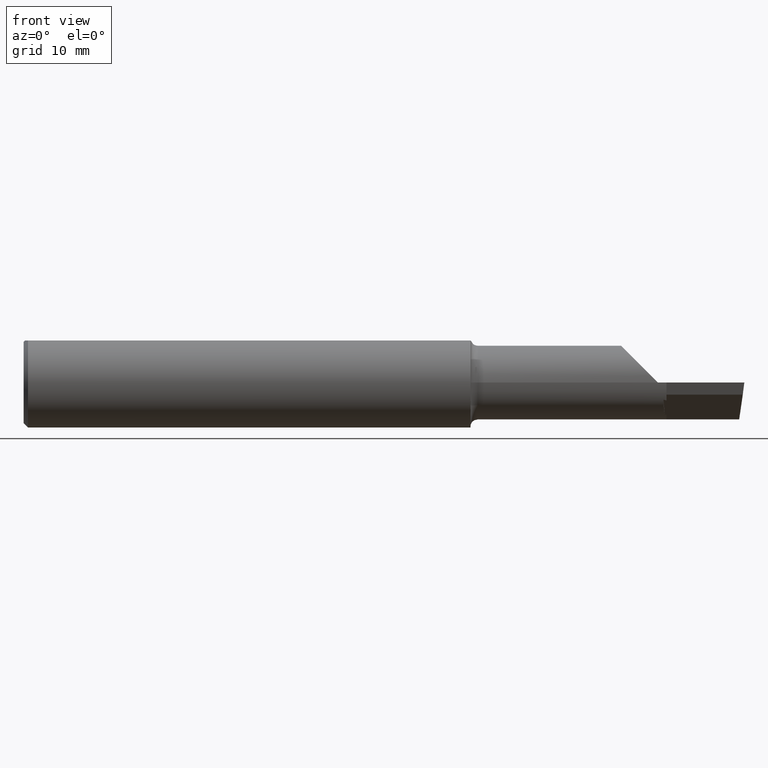
[diagram: clean part render]
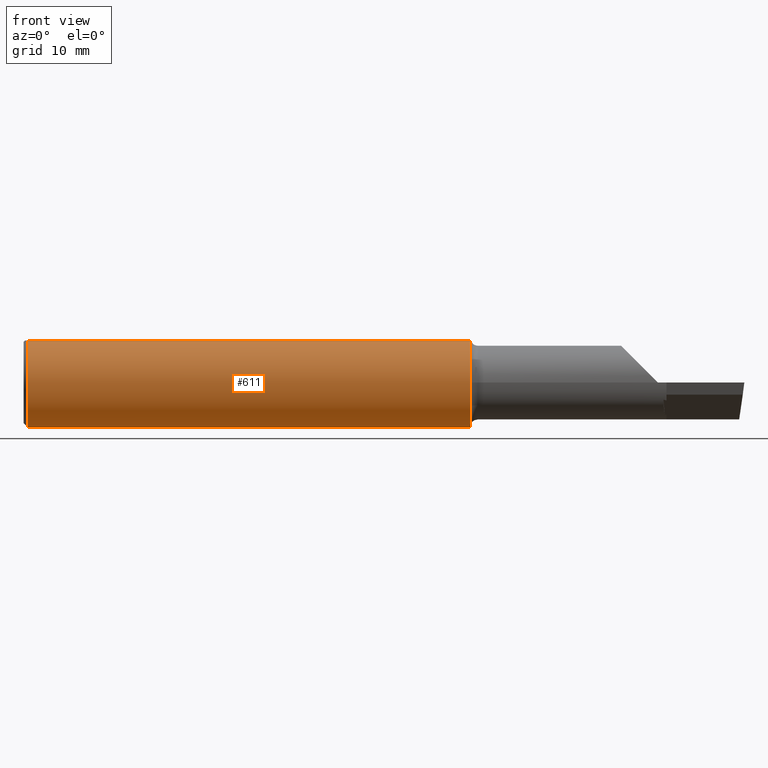
[diagram: same view with one face highlighted and labeled with its STEP entity id]
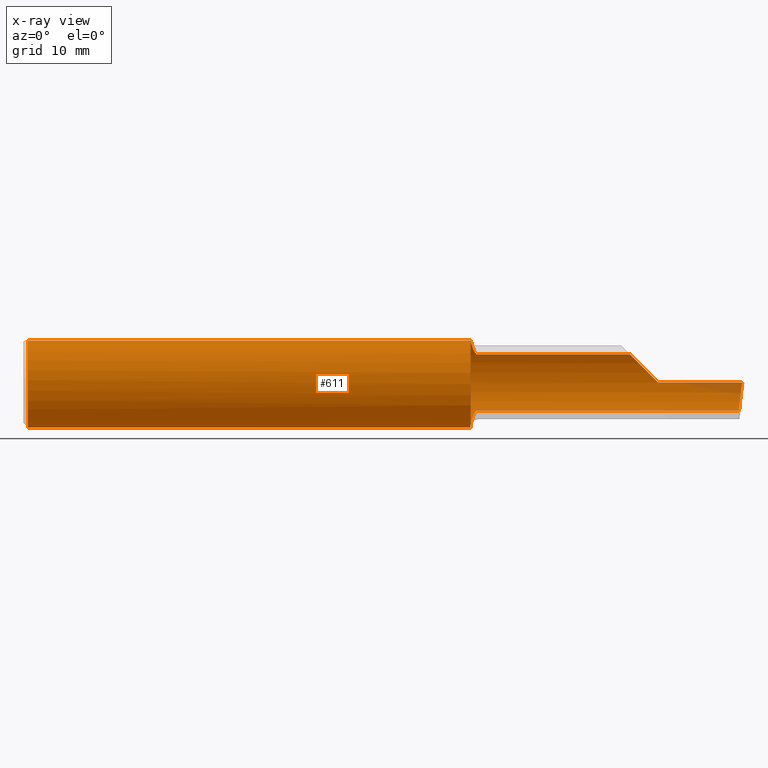
[diagram: x-ray of the same camera — body ghosted, the highlighted face saturated]
A machine part, front view. The second image highlights one B-rep face of the part: STEP entity #611.
The next image is the same camera in x-ray: the body ghosted, the highlighted face saturated — about 1% of this face is hidden behind the body in this view.
In plain terms, the highlighted cylindrical surface (partial cylindrical patch) has radius 3.9649 mm, axis along (-1, -0, -0).
Its self-contained STEP definition (entity closure, byte-faithful):
#1 = B_SPLINE_CURVE_WITH_KNOTS ( 'NONE', 3,
 ( #317, #483, #180, #320, #547, #287, #595, #674, #315, #540, #51, #491 ),
 .UNSPECIFIED., .F., .F.,
 ( 4, 2, 2, 2, 2, 4 ),
 ( 5.609278044431627235E-07, 0.001139286486424878012, 0.001708649265735095405, 0.001993330655390204102, 0.002135671350217758450, 0.002278012045045312798 ),
 .UNSPECIFIED. ) ;
#4 = CARTESIAN_POINT ( 'NONE',  ( 1.561718925422505011, 0.1096997042182709381, -0.1111484413982585656 ) ) ;
#9 = LINE ( 'NONE', #604, #90 ) ;
#18 = CIRCLE ( 'NONE', #415, 0.1560999999999999888 ) ;
#25 = VERTEX_POINT ( 'NONE', #586 ) ;
#33 = EDGE_CURVE ( 'NONE', #233, #289, #423, .T. ) ;
#40 = VERTEX_POINT ( 'NONE', #656 ) ;
#41 = EDGE_CURVE ( 'NONE', #650, #40, #9, .T. ) ;
#45 = DIRECTION ( 'NONE',  ( 0.000000000000000000, -1.000000000000000000, 0.000000000000000000 ) ) ;
#51 = CARTESIAN_POINT ( 'NONE',  ( 1.573073469876037578, 0.1221769230783503885, 0.09715971113124462211 ) ) ;
#66 = VECTOR ( 'NONE', #453, 39.37007874015748143 ) ;
#71 = ORIENTED_EDGE ( 'NONE', *, *, #41, .T. ) ;
#75 = EDGE_CURVE ( 'NONE', #477, #82, #495, .T. ) ;
#82 = VERTEX_POINT ( 'NONE', #110 ) ;
#87 = ORIENTED_EDGE ( 'NONE', *, *, #299, .T. ) ;
#90 = VECTOR ( 'NONE', #107, 39.37007874015748143 ) ;
#96 = DIRECTION ( 'NONE',  ( 0.000000000000000000, 0.000000000000000000, 1.000000000000000000 ) ) ;
#103 = CARTESIAN_POINT ( 'NONE',  ( 1.569807963827557939, 0.1204260765459410076, -0.09932603807424206233 ) ) ;
#107 = DIRECTION ( 'NONE',  ( 1.000000000000000000, -6.829619984160658046E-18, 0.000000000000000000 ) ) ;
#108 = CARTESIAN_POINT ( 'NONE',  ( 1.573773678789314845, 0.1221769230769225723, -0.09715971113303979723 ) ) ;
#110 = CARTESIAN_POINT ( 'NONE',  ( 1.550000000000000044, -0.05497272050753900657, 0.1461000000000000076 ) ) ;
#111 = EDGE_CURVE ( 'NONE', #40, #123, #235, .T. ) ;
#115 = CARTESIAN_POINT ( 'NONE',  ( 1.552778396491915069, 0.07658129683222567041, -0.1363479870192731702 ) ) ;
#120 = ORIENTED_EDGE ( 'NONE', *, *, #353, .T. ) ;
#123 = VERTEX_POINT ( 'NONE', #363 ) ;
#124 = EDGE_CURVE ( 'NONE', #443, #650, #1, .T. ) ;
#128 = CARTESIAN_POINT ( 'NONE',  ( 0.000000000000000000, 0.05497272050753903433, 0.1460999999999999521 ) ) ;
#134 = VECTOR ( 'NONE', #492, 39.37007874015748143 ) ;
#163 = CARTESIAN_POINT ( 'NONE',  ( 1.570642477297819584, 0.1209866175416251244, -0.09864046781463563229 ) ) ;
#168 = CARTESIAN_POINT ( 'NONE',  ( 3.121792066109142165E-32, 0.1560999999999999333, 3.155924005931204823E-16 ) ) ;
#178 = CARTESIAN_POINT ( 'NONE',  ( 1.902500000000000080, 0.1221769230769229331, -0.09715971113303932538 ) ) ;
#180 = CARTESIAN_POINT ( 'NONE',  ( 1.553337430773764405, 0.08212431379002413379, 0.1335735365034965427 ) ) ;
#184 = VERTEX_POINT ( 'NONE', #678 ) ;
#188 = AXIS2_PLACEMENT_3D ( 'NONE', #266, #537, #496 ) ;
#192 =( BOUNDED_CURVE ( )  B_SPLINE_CURVE ( 3, ( #392, #193, #232, #288 ),
 .UNSPECIFIED., .F., .T. ) 
 B_SPLINE_CURVE_WITH_KNOTS ( ( 4, 4 ),
 ( 4.934903206476692006, 5.606733633295030828 ),
 .UNSPECIFIED. ) 
 CURVE ( )  GEOMETRIC_REPRESENTATION_ITEM ( )  RATIONAL_B_SPLINE_CURVE ( ( 1.000000000000000000, 0.9627393467969929119, 0.9627393467969929119, 1.000000000000000000 ) ) 
 REPRESENTATION_ITEM ( '' )  );
#193 = CARTESIAN_POINT ( 'NONE',  ( 2.488065891762460069, 0.1561000000000000443, -0.03563149886036989789 ) ) ;
#206 = FACE_OUTER_BOUND ( 'NONE', #578, .T. ) ;
#215 = CARTESIAN_POINT ( 'NONE',  ( 0.01499999999999999424, 0.05497272050753903433, 0.1460999999999999521 ) ) ;
#218 = VECTOR ( 'NONE', #314, 39.37007874015748143 ) ;
#220 = CARTESIAN_POINT ( 'NONE',  ( 1.555770389155364919, 0.09238103948165142520, -0.1261792856732153745 ) ) ;
#222 = CARTESIAN_POINT ( 'NONE',  ( 2.130728481662469420, 0.1443546689866655186, 0.06927151833752984156 ) ) ;
#232 = CARTESIAN_POINT ( 'NONE',  ( 2.484397555013683423, 0.1443546689866653243, -0.06927151833753060484 ) ) ;
#233 = VERTEX_POINT ( 'NONE', #215 ) ;
#235 =( BOUNDED_CURVE ( )  B_SPLINE_CURVE ( 3, ( #368, #222, #441, #435 ),
 .UNSPECIFIED., .F., .F. ) 
 B_SPLINE_CURVE_WITH_KNOTS ( ( 4, 4 ),
 ( 0.8989658999765673952, 1.570796326794896336 ),
 .UNSPECIFIED. ) 
 CURVE ( )  GEOMETRIC_REPRESENTATION_ITEM ( )  RATIONAL_B_SPLINE_CURVE ( ( 1.000000000000000000, 0.9627393467969940222, 0.9627393467969940222, 1.000000000000000000 ) ) 
 REPRESENTATION_ITEM ( '' )  );
#245 = CARTESIAN_POINT ( 'NONE',  ( 1.574999999999999956, 0.1221769230769225167, -0.09715971113303972784 ) ) ;
#256 = ORIENTED_EDGE ( 'NONE', *, *, #124, .T. ) ;
#266 = CARTESIAN_POINT ( 'NONE',  ( 0.01499999999999999424, 0.000000000000000000, 0.000000000000000000 ) ) ;
#267 = LINE ( 'NONE', #168, #134 ) ;
#268 = CYLINDRICAL_SURFACE ( 'NONE', #312, 0.1560999999999999888 ) ;
#275 = EDGE_CURVE ( 'NONE', #123, #25, #267, .T. ) ;
#280 = CARTESIAN_POINT ( 'NONE',  ( 1.567557852537987184, 0.1186103045499234954, -0.1015006042428818478 ) ) ;
#287 = CARTESIAN_POINT ( 'NONE',  ( 1.563476732597053109, 0.1130158469709905134, 0.1077376761497233632 ) ) ;
#288 = CARTESIAN_POINT ( 'NONE',  ( 2.481689713451043833, 0.1221769230769229331, -0.09715971113303932538 ) ) ;
#289 = VERTEX_POINT ( 'NONE', #382 ) ;
#299 = EDGE_CURVE ( 'NONE', #410, #477, #573, .T. ) ;
#302 = ORIENTED_EDGE ( 'NONE', *, *, #275, .T. ) ;
#312 = AXIS2_PLACEMENT_3D ( 'NONE', #424, #644, #482 ) ;
#314 = DIRECTION ( 'NONE',  ( -1.000000000000000000, -0.000000000000000000, -0.000000000000000000 ) ) ;
#315 = CARTESIAN_POINT ( 'NONE',  ( 1.568763041475362385, 0.1196999967355485001, 0.1002047663032609726 ) ) ;
#316 = CARTESIAN_POINT ( 'NONE',  ( 1.566392177358948201, 0.1172252637552312765, -0.1031022108064125337 ) ) ;
#317 = CARTESIAN_POINT ( 'NONE',  ( 1.550713348720345941, 0.05497272050753925637, 0.1460999999999999521 ) ) ;
#319 = DIRECTION ( 'NONE',  ( -1.000000000000000000, 6.829619984160658046E-18, -0.000000000000000000 ) ) ;
#320 = CARTESIAN_POINT ( 'NONE',  ( 1.557875668882801934, 0.09985555054163962330, 0.1202116869044328185 ) ) ;
#353 = EDGE_CURVE ( 'NONE', #233, #443, #409, .T. ) ;
#357 = VECTOR ( 'NONE', #319, 39.37007874015748143 ) ;
#363 = CARTESIAN_POINT ( 'NONE',  ( 2.200000000000000178, 0.1560999999999997667, 9.797174393178826150E-17 ) ) ;
#367 = DIRECTION ( 'NONE',  ( -1.000000000000000000, -0.000000000000000000, -0.000000000000000000 ) ) ;
#368 = CARTESIAN_POINT ( 'NONE',  ( 2.102840288866960616, 0.1221769230769238490, 0.09715971113303838169 ) ) ;
#374 = LINE ( 'NONE', #697, #218 ) ;
#376 = CARTESIAN_POINT ( 'NONE',  ( 1.550000000000000044, 0.04153761541478954988, -0.1507758181214158000 ) ) ;
#382 = CARTESIAN_POINT ( 'NONE',  ( 0.01499999999999999424, 0.000000000000000000, -0.1560999999999999888 ) ) ;
#392 = CARTESIAN_POINT ( 'NONE',  ( 2.492284669827090404, 0.1560999999999998500, 6.904452464043948710E-17 ) ) ;
#398 = DIRECTION ( 'NONE',  ( -1.000000000000000000, 6.829619984160658046E-18, -0.000000000000000000 ) ) ;
#409 = LINE ( 'NONE', #128, #66 ) ;
#410 = VERTEX_POINT ( 'NONE', #245 ) ;
#415 = AXIS2_PLACEMENT_3D ( 'NONE', #587, #367, #96 ) ;
#423 = CIRCLE ( 'NONE', #188, 0.1560999999999999888 ) ;
#424 = CARTESIAN_POINT ( 'NONE',  ( 0.000000000000000000, 0.000000000000000000, 0.000000000000000000 ) ) ;
#435 = CARTESIAN_POINT ( 'NONE',  ( 2.200000000000000178, 0.1560999999999997667, 9.797174393178826150E-17 ) ) ;
#438 = CARTESIAN_POINT ( 'NONE',  ( 1.551725101710129007, 0.06813315891665765178, -0.1407628789512506418 ) ) ;
#441 = CARTESIAN_POINT ( 'NONE',  ( 2.164368501139629863, 0.1560999999999999888, 0.03563149886036958564 ) ) ;
#443 = VERTEX_POINT ( 'NONE', #685 ) ;
#444 = LINE ( 'NONE', #178, #357 ) ;
#446 = CARTESIAN_POINT ( 'NONE',  ( 1.550339637342208254, 0.05067448177557431349, -0.1479473295851734538 ) ) ;
#453 = DIRECTION ( 'NONE',  ( 1.000000000000000000, 0.000000000000000000, 0.000000000000000000 ) ) ;
#475 = EDGE_CURVE ( 'NONE', #25, #698, #192, .T. ) ;
#476 = CARTESIAN_POINT ( 'NONE',  ( 1.574999999999999956, 0.1221769230769225584, 0.09715971113303970008 ) ) ;
#477 = VERTEX_POINT ( 'NONE', #554 ) ;
#482 = DIRECTION ( 'NONE',  ( 0.000000000000000000, 0.000000000000000000, 1.000000000000000000 ) ) ;
#483 = CARTESIAN_POINT ( 'NONE',  ( 1.551630938536527893, 0.06913608029031600988, 0.1407707842656650832 ) ) ;
#491 = CARTESIAN_POINT ( 'NONE',  ( 1.574999999999999956, 0.1221769230769225584, 0.09715971113303970008 ) ) ;
#492 = DIRECTION ( 'NONE',  ( 1.000000000000000000, 0.000000000000000000, 0.000000000000000000 ) ) ;
#495 = CIRCLE ( 'NONE', #608, 0.1560999999999999888 ) ;
#496 = DIRECTION ( 'NONE',  ( 0.000000000000000000, 0.000000000000000000, 1.000000000000000000 ) ) ;
#499 = CARTESIAN_POINT ( 'NONE',  ( 1.572618110610526143, 0.1218695340585145975, -0.09754752781702971665 ) ) ;
#506 = ORIENTED_EDGE ( 'NONE', *, *, #75, .T. ) ;
#508 = CARTESIAN_POINT ( 'NONE',  ( 2.481689713451043833, 0.1221769230769229331, -0.09715971113303932538 ) ) ;
#537 = DIRECTION ( 'NONE',  ( -1.000000000000000000, -0.000000000000000000, -0.000000000000000000 ) ) ;
#540 = CARTESIAN_POINT ( 'NONE',  ( 1.571394201221187892, 0.1214391589398822330, 0.09808983170724422385 ) ) ;
#541 = CARTESIAN_POINT ( 'NONE',  ( 1.563285512035948344, 0.1129012003027988348, -0.1078842078934687670 ) ) ;
#542 = ORIENTED_EDGE ( 'NONE', *, *, #111, .T. ) ;
#547 = CARTESIAN_POINT ( 'NONE',  ( 1.559698108077550494, 0.1054404049151043271, 0.1153284228895399555 ) ) ;
#554 = CARTESIAN_POINT ( 'NONE',  ( 1.550000000000000044, 0.03217692307692266579, -0.1527476861405821507 ) ) ;
#559 = EDGE_CURVE ( 'NONE', #82, #184, #374, .T. ) ;
#566 = ORIENTED_EDGE ( 'NONE', *, *, #627, .F. ) ;
#573 = B_SPLINE_CURVE_WITH_KNOTS ( 'NONE', 3,
 ( #602, #108, #499, #163, #103, #280, #316, #541, #4, #610, #220, #115, #438, #446, #376, #666 ),
 .UNSPECIFIED., .F., .F.,
 ( 4, 2, 2, 2, 2, 2, 2, 4 ),
 ( 1.968192473106401547E-07, 9.217006773806851142E-05, 0.0001841433162288263841, 0.0003680898132103292003, 0.0007359828071733347243, 0.001471768795099344255, 0.002207554783025352917, 0.002943340770951361363 ),
 .UNSPECIFIED. ) ;
#578 = EDGE_LOOP ( 'NONE', ( #302, #584, #645, #87, #506, #663, #566, #597, #120, #256, #71, #542 ) ) ;
#584 = ORIENTED_EDGE ( 'NONE', *, *, #475, .T. ) ;
#586 = CARTESIAN_POINT ( 'NONE',  ( 2.492284669827090404, 0.1560999999999998500, 6.904452464043948710E-17 ) ) ;
#587 = CARTESIAN_POINT ( 'NONE',  ( 0.01499999999999999424, 0.000000000000000000, 0.000000000000000000 ) ) ;
#595 = CARTESIAN_POINT ( 'NONE',  ( 1.564904289182651675, 0.1154277421181114510, 0.1051401666291004455 ) ) ;
#597 = ORIENTED_EDGE ( 'NONE', *, *, #33, .F. ) ;
#602 = CARTESIAN_POINT ( 'NONE',  ( 1.574999999999999956, 0.1221769230769225167, -0.09715971113303972784 ) ) ;
#604 = CARTESIAN_POINT ( 'NONE',  ( 1.902500000000000080, 0.1221769230769229331, 0.09715971113303932538 ) ) ;
#608 = AXIS2_PLACEMENT_3D ( 'NONE', #659, #398, #45 ) ;
#610 = CARTESIAN_POINT ( 'NONE',  ( 1.557643545987174916, 0.09968740490940211640, -0.1204690658458920371 ) ) ;
#611 = ADVANCED_FACE ( 'NONE', ( #206 ), #268, .T. ) ;
#627 = EDGE_CURVE ( 'NONE', #289, #184, #18, .T. ) ;
#644 = DIRECTION ( 'NONE',  ( -1.000000000000000000, -0.000000000000000000, -0.000000000000000000 ) ) ;
#645 = ORIENTED_EDGE ( 'NONE', *, *, #688, .T. ) ;
#650 = VERTEX_POINT ( 'NONE', #476 ) ;
#656 = CARTESIAN_POINT ( 'NONE',  ( 2.102840288866960616, 0.1221769230769238490, 0.09715971113303838169 ) ) ;
#659 = CARTESIAN_POINT ( 'NONE',  ( 1.550000000000000044, 0.000000000000000000, 0.000000000000000000 ) ) ;
#663 = ORIENTED_EDGE ( 'NONE', *, *, #559, .T. ) ;
#666 = CARTESIAN_POINT ( 'NONE',  ( 1.550000000000000044, 0.03217692307692266579, -0.1527476861405821507 ) ) ;
#674 = CARTESIAN_POINT ( 'NONE',  ( 1.567713039397279351, 0.1186710145423635343, 0.1014253537327266808 ) ) ;
#678 = CARTESIAN_POINT ( 'NONE',  ( 0.01499999999999999944, -0.05497272050753897882, 0.1461000000000000076 ) ) ;
#685 = CARTESIAN_POINT ( 'NONE',  ( 1.550713348720345941, 0.05497272050753925637, 0.1460999999999999521 ) ) ;
#688 = EDGE_CURVE ( 'NONE', #698, #410, #444, .T. ) ;
#697 = CARTESIAN_POINT ( 'NONE',  ( 0.000000000000000000, -0.05497272050753897882, 0.1461000000000000076 ) ) ;
#698 = VERTEX_POINT ( 'NONE', #508 ) ;